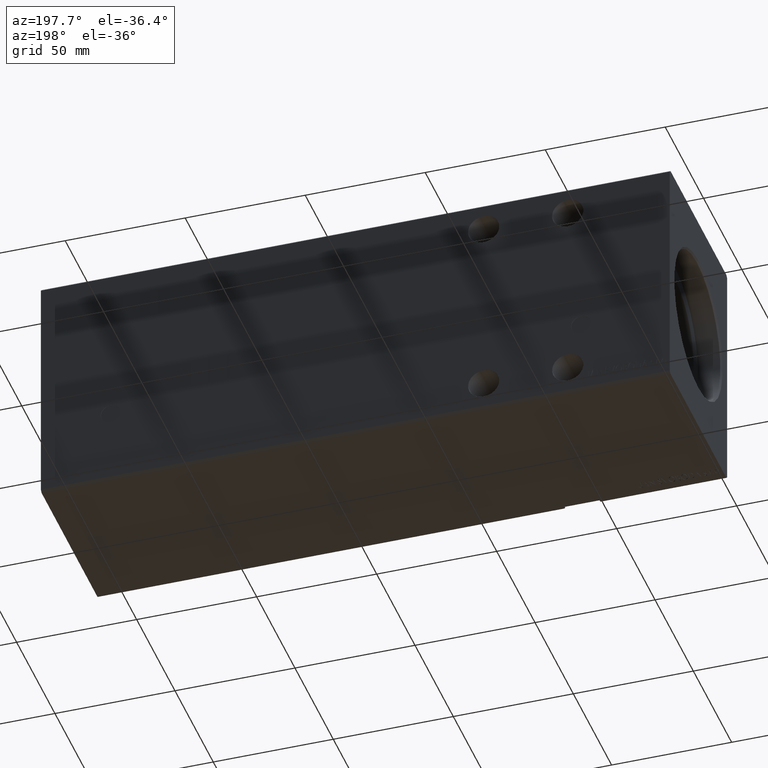
[diagram: clean part render]
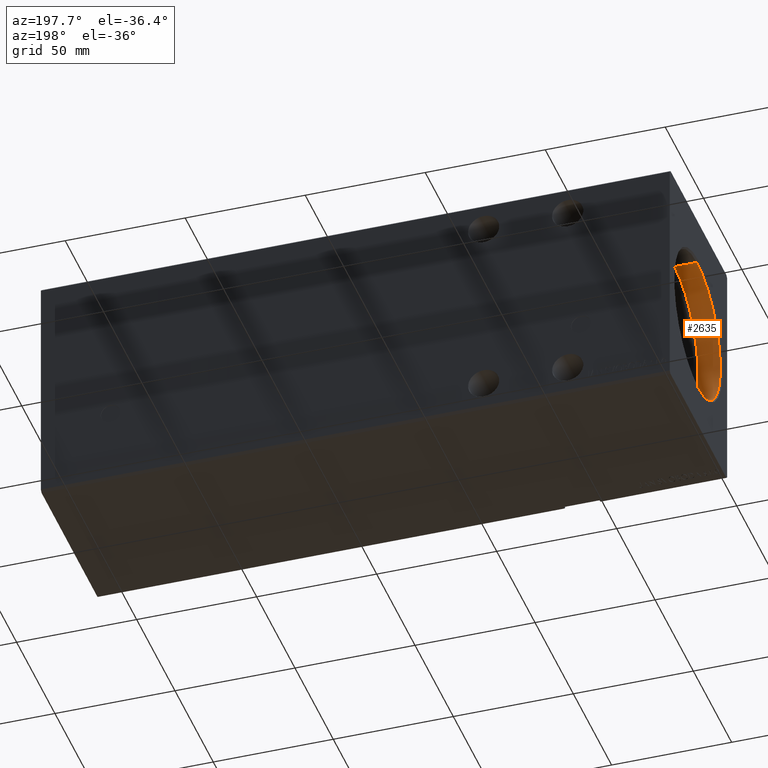
[diagram: same view with one face highlighted and labeled with its STEP entity id]
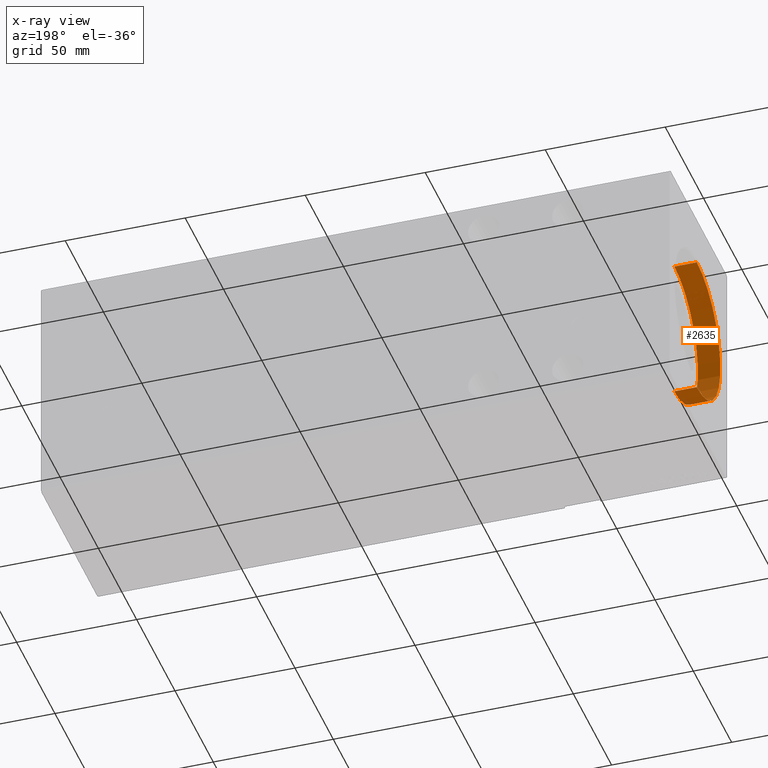
[diagram: x-ray of the same camera — body ghosted, the highlighted face saturated]
A machine part, auxiliary view. The second image highlights one B-rep face of the part: STEP entity #2635.
The next image is the same camera in x-ray: the body ghosted, the highlighted face saturated — about 2% of this face is hidden behind the body in this view.
In plain terms, the highlighted cylindrical surface (partial cylindrical patch) has radius 30.75 mm, axis along (-1, -0, -0).
Its self-contained STEP definition (entity closure, byte-faithful):
#2119 = CARTESIAN_POINT ( 'NONE',  ( 0.6999999999999957367, 3.765788907378111328E-15, -30.75000000000000355 ) ) ;
#2635 = ADVANCED_FACE ( 'NONE', ( #28264 ), #38038, .F. ) ;
#3332 = AXIS2_PLACEMENT_3D ( 'NONE', #4661, #14452, #27430 ) ;
#3386 = VERTEX_POINT ( 'NONE', #2119 ) ;
#3428 = LINE ( 'NONE', #15789, #14208 ) ;
#4182 = LINE ( 'NONE', #36287, #38454 ) ;
#4640 = EDGE_CURVE ( 'NONE', #3386, #24804, #25106, .T. ) ;
#4661 = CARTESIAN_POINT ( 'NONE',  ( 10.00000000000000000, 0.000000000000000000, 0.000000000000000000 ) ) ;
#4851 = DIRECTION ( 'NONE',  ( 0.000000000000000000, 0.000000000000000000, 1.000000000000000000 ) ) ;
#6835 = DIRECTION ( 'NONE',  ( -1.000000000000000000, -0.000000000000000000, -0.000000000000000000 ) ) ;
#7023 = CARTESIAN_POINT ( 'NONE',  ( 10.00000000000000000, 3.765788907378111328E-15, -30.75000000000000355 ) ) ;
#7164 = DIRECTION ( 'NONE',  ( -1.000000000000000000, -0.000000000000000000, -0.000000000000000000 ) ) ;
#8895 = CIRCLE ( 'NONE', #12299, 30.75000000000000355 ) ;
#8897 = CARTESIAN_POINT ( 'NONE',  ( 0.6999999999999957367, 0.000000000000000000, 0.000000000000000000 ) ) ;
#9364 = EDGE_CURVE ( 'NONE', #13349, #36280, #8895, .T. ) ;
#10259 = ORIENTED_EDGE ( 'NONE', *, *, #25988, .T. ) ;
#12299 = AXIS2_PLACEMENT_3D ( 'NONE', #21229, #21434, #4851 ) ;
#13349 = VERTEX_POINT ( 'NONE', #7023 ) ;
#14208 = VECTOR ( 'NONE', #6835, 1000.000000000000000 ) ;
#14452 = DIRECTION ( 'NONE',  ( -1.000000000000000000, -0.000000000000000000, -0.000000000000000000 ) ) ;
#15339 = EDGE_LOOP ( 'NONE', ( #37274, #10259, #26268, #15742 ) ) ;
#15742 = ORIENTED_EDGE ( 'NONE', *, *, #41952, .F. ) ;
#15789 = CARTESIAN_POINT ( 'NONE',  ( 10.00000000000000000, 0.000000000000000000, 30.75000000000000355 ) ) ;
#16157 = CARTESIAN_POINT ( 'NONE',  ( 10.00000000000000000, 0.000000000000000000, 30.75000000000000355 ) ) ;
#21229 = CARTESIAN_POINT ( 'NONE',  ( 10.00000000000000000, 0.000000000000000000, 0.000000000000000000 ) ) ;
#21434 = DIRECTION ( 'NONE',  ( -1.000000000000000000, 0.000000000000000000, 0.000000000000000000 ) ) ;
#24804 = VERTEX_POINT ( 'NONE', #38785 ) ;
#25106 = CIRCLE ( 'NONE', #36629, 30.75000000000000355 ) ;
#25988 = EDGE_CURVE ( 'NONE', #13349, #3386, #4182, .T. ) ;
#26268 = ORIENTED_EDGE ( 'NONE', *, *, #4640, .T. ) ;
#27430 = DIRECTION ( 'NONE',  ( 0.000000000000000000, 0.000000000000000000, 1.000000000000000000 ) ) ;
#28264 = FACE_OUTER_BOUND ( 'NONE', #15339, .T. ) ;
#34007 = DIRECTION ( 'NONE',  ( 0.000000000000000000, 0.000000000000000000, -1.000000000000000000 ) ) ;
#36280 = VERTEX_POINT ( 'NONE', #16157 ) ;
#36287 = CARTESIAN_POINT ( 'NONE',  ( 10.00000000000000000, 3.765788907378111328E-15, -30.75000000000000355 ) ) ;
#36629 = AXIS2_PLACEMENT_3D ( 'NONE', #8897, #37598, #34007 ) ;
#37274 = ORIENTED_EDGE ( 'NONE', *, *, #9364, .F. ) ;
#37598 = DIRECTION ( 'NONE',  ( -1.000000000000000000, 0.000000000000000000, 0.000000000000000000 ) ) ;
#38038 = CYLINDRICAL_SURFACE ( 'NONE', #3332, 30.75000000000000355 ) ;
#38454 = VECTOR ( 'NONE', #7164, 1000.000000000000000 ) ;
#38785 = CARTESIAN_POINT ( 'NONE',  ( 0.6999999999999957367, 0.000000000000000000, 30.75000000000000355 ) ) ;
#41952 = EDGE_CURVE ( 'NONE', #36280, #24804, #3428, .T. ) ;